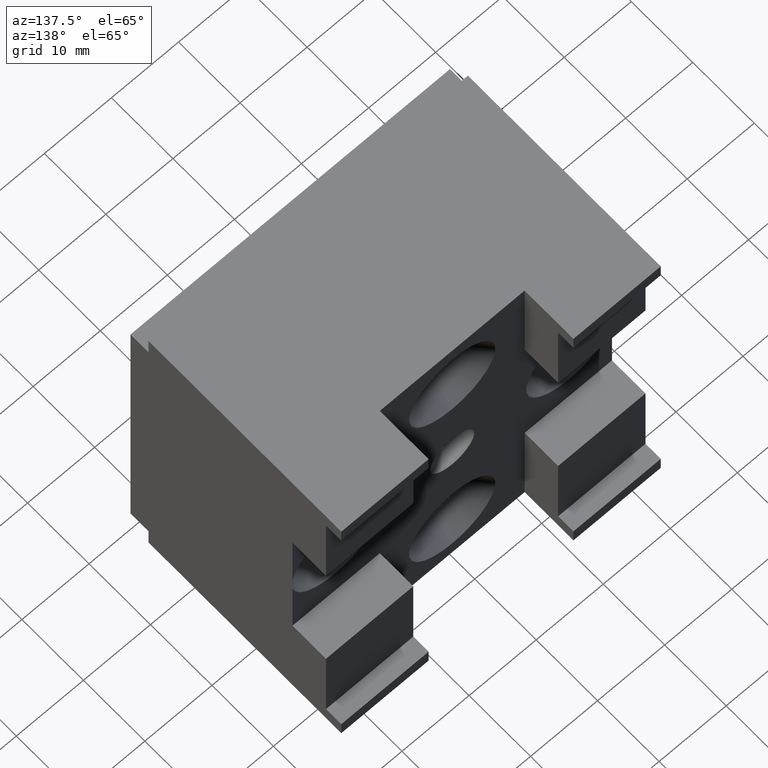
[diagram: clean part render]
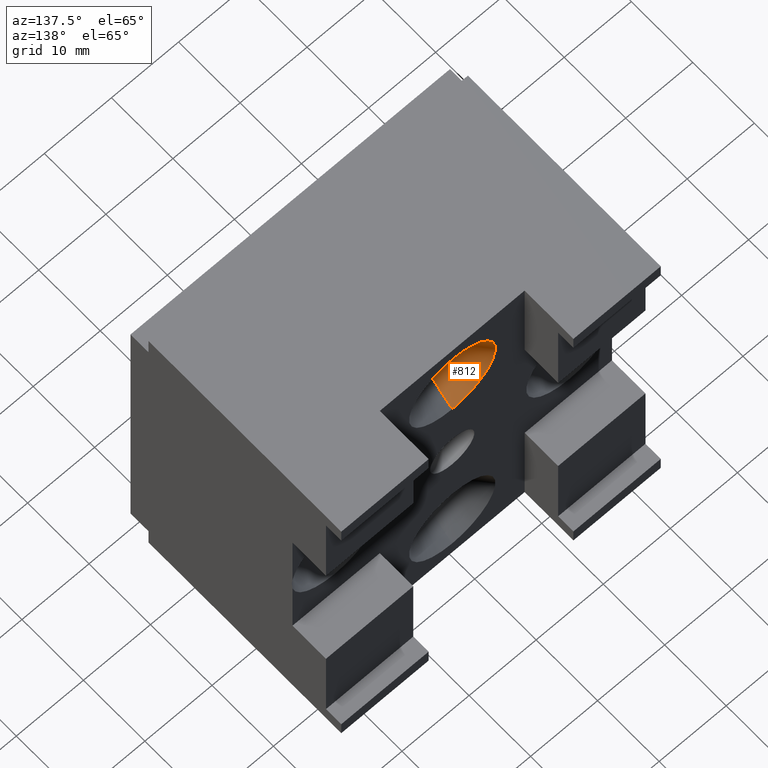
[diagram: same view with one face highlighted and labeled with its STEP entity id]
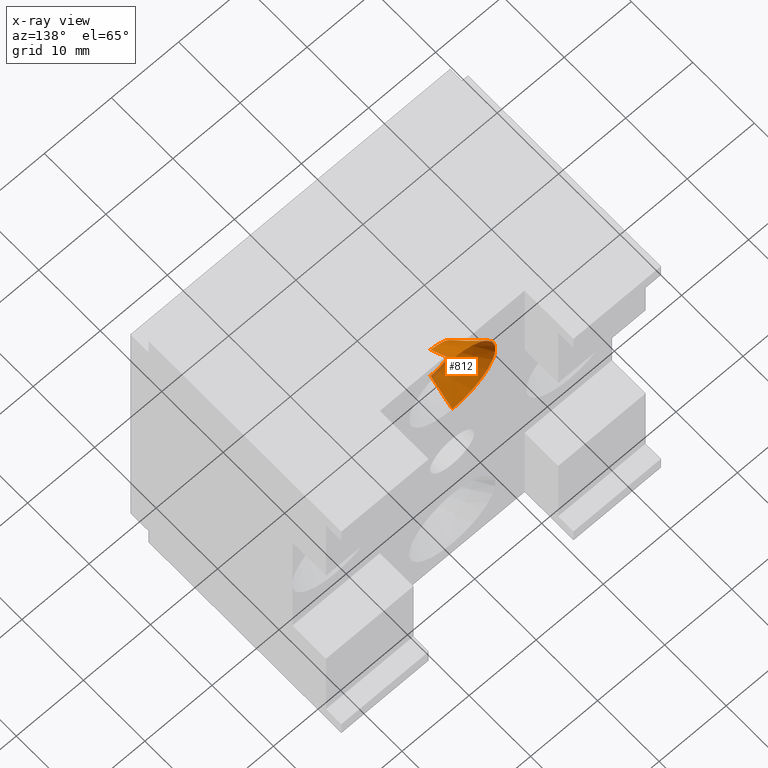
[diagram: x-ray of the same camera — body ghosted, the highlighted face saturated]
A machine part, auxiliary view. The second image highlights one B-rep face of the part: STEP entity #812.
The next image is the same camera in x-ray: the body ghosted, the highlighted face saturated — about 3% of this face is hidden behind the body in this view.
In plain terms, the highlighted conical surface has half-angle 41 deg.
Its self-contained STEP definition (entity closure, byte-faithful):
#85 = AXIS2_PLACEMENT_3D ( 'NONE', #1198, #1127, #1201 ) ;
#109 = AXIS2_PLACEMENT_3D ( 'NONE', #488, #490, #491 ) ;
#187 = CONICAL_SURFACE ( 'NONE', #85, 0.2534999999999998900, 0.7155849933176763300 ) ;
#212 = CARTESIAN_POINT ( 'NONE',  ( -5.277028813921441500E-018, 1.037500000000000100, 0.9410000000000001700 ) ) ;
#214 = CARTESIAN_POINT ( 'NONE',  ( 0.0000000000000000000, 1.037500000000000100, 0.6875000000000002200 ) ) ;
#215 = DIRECTION ( 'NONE',  ( -1.309289925027225900E-017, 1.000000000000000000, -3.229997658014709200E-019 ) ) ;
#216 = DIRECTION ( 'NONE',  ( -2.081668171172167300E-017, 0.0000000000000000000, 1.000000000000000000 ) ) ;
#218 = DIRECTION ( 'NONE',  ( -2.353830848766860400E-017, 0.7547095802227714600, 0.6560590289905079400 ) ) ;
#219 = CARTESIAN_POINT ( 'NONE',  ( 3.632182517230683400E-017, 1.037500000000000100, 0.4340000000000003300 ) ) ;
#220 = DIRECTION ( 'NONE',  ( 8.411969448401920200E-017, 0.7547095802227714600, -0.6560590289905079400 ) ) ;
#312 = CARTESIAN_POINT ( 'NONE',  ( -5.277028813921441500E-018, 1.037500000000000100, 0.9410000000000001700 ) ) ;
#314 = CARTESIAN_POINT ( 'NONE',  ( 2.675582745619807200E-017, 0.8988806069298686000, 0.5545000000000003300 ) ) ;
#316 = CARTESIAN_POINT ( 'NONE',  ( -2.768618667658979300E-018, 0.8988806069298686000, 0.8205000000000001200 ) ) ;
#319 = CARTESIAN_POINT ( 'NONE',  ( 3.632182517230683400E-017, 1.037500000000000100, 0.4340000000000003300 ) ) ;
#488 = CARTESIAN_POINT ( 'NONE',  ( 0.0000000000000000000, 0.8988806069298686000, 0.6875000000000002200 ) ) ;
#490 = DIRECTION ( 'NONE',  ( -1.309289925027225900E-017, 1.000000000000000000, -3.229997658014709200E-019 ) ) ;
#491 = DIRECTION ( 'NONE',  ( -2.081668171172166000E-017, 0.0000000000000000000, 1.000000000000000000 ) ) ;
#630 = FACE_OUTER_BOUND ( 'NONE', #1663, .T. ) ;
#812 = ADVANCED_FACE ( 'NONE', ( #630 ), #187, .F. ) ;
#881 = CIRCLE ( 'NONE', #109, 0.1329999999999999200 ) ;
#987 = VECTOR ( 'NONE', #218, 39.37007874015748100 ) ;
#996 = LINE ( 'NONE', #212, #987 ) ;
#997 = CIRCLE ( 'NONE', #1299, 0.2534999999999998900 ) ;
#998 = LINE ( 'NONE', #219, #999 ) ;
#999 = VECTOR ( 'NONE', #220, 39.37007874015748100 ) ;
#1127 = DIRECTION ( 'NONE',  ( -1.309289925027225900E-017, 1.000000000000000000, -3.229997658014709200E-019 ) ) ;
#1198 = CARTESIAN_POINT ( 'NONE',  ( 0.0000000000000000000, 1.037500000000000100, 0.6875000000000002200 ) ) ;
#1201 = DIRECTION ( 'NONE',  ( -2.081668171172167300E-017, 0.0000000000000000000, 1.000000000000000000 ) ) ;
#1299 = AXIS2_PLACEMENT_3D ( 'NONE', #214, #215, #216 ) ;
#1335 = EDGE_CURVE ( 'NONE', #1432, #1425, #997, .T. ) ;
#1336 = EDGE_CURVE ( 'NONE', #1429, #1425, #996, .T. ) ;
#1337 = EDGE_CURVE ( 'NONE', #1427, #1432, #998, .T. ) ;
#1425 = VERTEX_POINT ( 'NONE', #312 ) ;
#1427 = VERTEX_POINT ( 'NONE', #314 ) ;
#1429 = VERTEX_POINT ( 'NONE', #316 ) ;
#1432 = VERTEX_POINT ( 'NONE', #319 ) ;
#1663 = EDGE_LOOP ( 'NONE', ( #1675, #1726, #1715, #1666 ) ) ;
#1666 = ORIENTED_EDGE ( 'NONE', *, *, #1336, .F. ) ;
#1675 = ORIENTED_EDGE ( 'NONE', *, *, #1785, .F. ) ;
#1715 = ORIENTED_EDGE ( 'NONE', *, *, #1335, .T. ) ;
#1726 = ORIENTED_EDGE ( 'NONE', *, *, #1337, .T. ) ;
#1785 = EDGE_CURVE ( 'NONE', #1427, #1429, #881, .T. ) ;